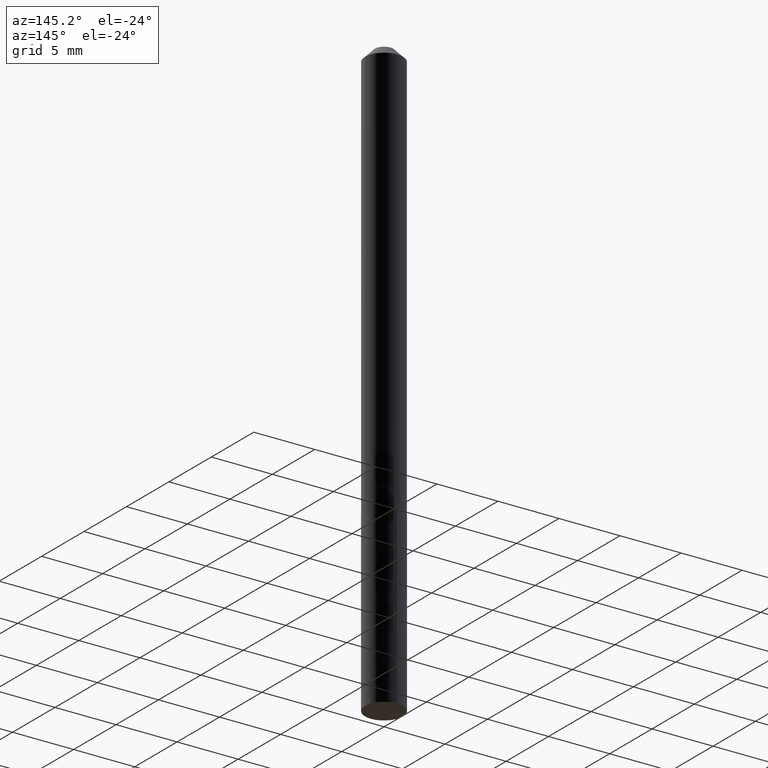
[diagram: clean part render]
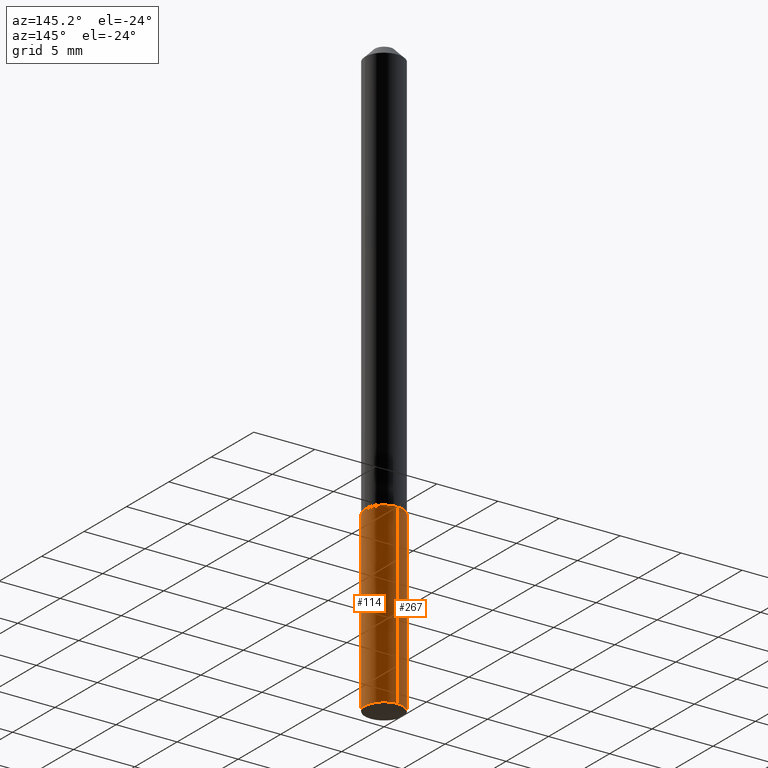
[diagram: same view with one multi-face feature highlighted, each face labeled with its STEP entity id]
A machine part, auxiliary view. The highlighted faces form ONE feature: a constant-radius fillet chain: 2 tangent blend faces with common blend radius 1.5494 mm. The faces share edges in the B-rep.
Their STEP definitions:
[1] entity #114 (Cylinder):
#6 = DIRECTION ( 'NONE',  ( -6.982962677686265922E-15, -1.000000000000000000, 4.478439333875842027E-15 ) ) ;
#10 = DIRECTION ( 'NONE',  ( -6.982962677686265922E-15, -1.000000000000000000, 4.478439333875842027E-15 ) ) ;
#14 = CARTESIAN_POINT ( 'NONE',  ( 4.334310688136938416E-16, 0.06099999999999530798, -1.342400000000000038 ) ) ;
#18 = AXIS2_PLACEMENT_3D ( 'NONE', #33, #62, #6 ) ;
#33 = CARTESIAN_POINT ( 'NONE',  ( 3.282797325422927074E-29, -4.686964549263038164E-15, -1.342399999999999816 ) ) ;
#38 = DIRECTION ( 'NONE',  ( -2.445600404365776077E-29, 3.491292882758366789E-15, 1.000000000000000000 ) ) ;
#51 = ORIENTED_EDGE ( 'NONE', *, *, #195, .F. ) ;
#54 = ORIENTED_EDGE ( 'NONE', *, *, #172, .T. ) ;
#62 = DIRECTION ( 'NONE',  ( -2.445600404365776077E-29, 3.491292882758366789E-15, 1.000000000000000000 ) ) ;
#86 = AXIS2_PLACEMENT_3D ( 'NONE', #257, #38, #95 ) ;
#95 = DIRECTION ( 'NONE',  ( -6.982962677686265922E-15, -1.000000000000000000, 4.478439333875842027E-15 ) ) ;
#98 = CIRCLE ( 'NONE', #86, 0.06099999999999999173 ) ;
#111 = EDGE_LOOP ( 'NONE', ( #54, #143, #51, #127 ) ) ;
#114 = ADVANCED_FACE ( 'NONE', ( #152 ), #342, .T. ) ;
#126 = VECTOR ( 'NONE', #133, 39.37007874015748143 ) ;
#127 = ORIENTED_EDGE ( 'NONE', *, *, #193, .F. ) ;
#133 = DIRECTION ( 'NONE',  ( -2.445600404365776077E-29, 3.491292882758367183E-15, 1.000000000000000000 ) ) ;
#134 = CARTESIAN_POINT ( 'NONE',  ( -4.259607233388293679E-16, -0.06100000000000468242, -1.342399999999999594 ) ) ;
#135 = LINE ( 'NONE', #14, #276 ) ;
#143 = ORIENTED_EDGE ( 'NONE', *, *, #144, .T. ) ;
#144 = EDGE_CURVE ( 'NONE', #212, #370, #135, .T. ) ;
#152 = FACE_OUTER_BOUND ( 'NONE', #111, .T. ) ;
#164 = AXIS2_PLACEMENT_3D ( 'NONE', #167, #229, #10 ) ;
#166 = CARTESIAN_POINT ( 'NONE',  ( -4.259607233388154150E-16, -0.06100000000000668082, -1.912755099261701064 ) ) ;
#167 = CARTESIAN_POINT ( 'NONE',  ( 4.677657986809425875E-29, -6.678241247960359106E-15, -1.912755099261701286 ) ) ;
#172 = EDGE_CURVE ( 'NONE', #187, #212, #197, .T. ) ;
#187 = VERTEX_POINT ( 'NONE', #166 ) ;
#193 = EDGE_CURVE ( 'NONE', #187, #273, #279, .T. ) ;
#195 = EDGE_CURVE ( 'NONE', #273, #370, #98, .T. ) ;
#197 = CIRCLE ( 'NONE', #164, 0.06099999999999999173 ) ;
#212 = VERTEX_POINT ( 'NONE', #353 ) ;
#229 = DIRECTION ( 'NONE',  ( -2.445600404365776077E-29, 3.491292882758366789E-15, 1.000000000000000000 ) ) ;
#257 = CARTESIAN_POINT ( 'NONE',  ( 3.282797325422927074E-29, -4.686964549263038164E-15, -1.342399999999999816 ) ) ;
#273 = VERTEX_POINT ( 'NONE', #314 ) ;
#276 = VECTOR ( 'NONE', #322, 39.37007874015748143 ) ;
#279 = LINE ( 'NONE', #134, #126 ) ;
#314 = CARTESIAN_POINT ( 'NONE',  ( -4.259607233388293679E-16, -0.06100000000000468242, -1.342399999999999594 ) ) ;
#322 = DIRECTION ( 'NONE',  ( -2.445600404365776077E-29, 3.491292882758367183E-15, 1.000000000000000000 ) ) ;
#342 = CYLINDRICAL_SURFACE ( 'NONE', #18, 0.06099999999999999173 ) ;
#353 = CARTESIAN_POINT ( 'NONE',  ( 4.334310688137078439E-16, 0.06099999999999331651, -1.912755099261701508 ) ) ;
#370 = VERTEX_POINT ( 'NONE', #382 ) ;
#382 = CARTESIAN_POINT ( 'NONE',  ( 4.334310688137078932E-16, 0.06099999999999530798, -1.342400000000000038 ) ) ;
[2] entity #267 (Cylinder):
#14 = CARTESIAN_POINT ( 'NONE',  ( 4.334310688136938416E-16, 0.06099999999999530798, -1.342400000000000038 ) ) ;
#22 = EDGE_CURVE ( 'NONE', #212, #187, #381, .T. ) ;
#27 = CARTESIAN_POINT ( 'NONE',  ( 3.282797325422927074E-29, -4.686964549263038164E-15, -1.342399999999999816 ) ) ;
#29 = DIRECTION ( 'NONE',  ( -6.982962677686265922E-15, -1.000000000000000000, 4.478439333875842027E-15 ) ) ;
#45 = EDGE_CURVE ( 'NONE', #370, #273, #136, .T. ) ;
#56 = DIRECTION ( 'NONE',  ( -2.445600404365776077E-29, 3.491292882758366789E-15, 1.000000000000000000 ) ) ;
#70 = DIRECTION ( 'NONE',  ( -2.445600404365776077E-29, 3.491292882758366789E-15, 1.000000000000000000 ) ) ;
#126 = VECTOR ( 'NONE', #133, 39.37007874015748143 ) ;
#133 = DIRECTION ( 'NONE',  ( -2.445600404365776077E-29, 3.491292882758367183E-15, 1.000000000000000000 ) ) ;
#134 = CARTESIAN_POINT ( 'NONE',  ( -4.259607233388293679E-16, -0.06100000000000468242, -1.342399999999999594 ) ) ;
#135 = LINE ( 'NONE', #14, #276 ) ;
#136 = CIRCLE ( 'NONE', #386, 0.06099999999999999173 ) ;
#144 = EDGE_CURVE ( 'NONE', #212, #370, #135, .T. ) ;
#145 = ORIENTED_EDGE ( 'NONE', *, *, #45, .F. ) ;
#149 = AXIS2_PLACEMENT_3D ( 'NONE', #333, #56, #177 ) ;
#150 = ORIENTED_EDGE ( 'NONE', *, *, #193, .T. ) ;
#166 = CARTESIAN_POINT ( 'NONE',  ( -4.259607233388154150E-16, -0.06100000000000668082, -1.912755099261701064 ) ) ;
#177 = DIRECTION ( 'NONE',  ( -6.982962677686265922E-15, -1.000000000000000000, 4.478439333875842027E-15 ) ) ;
#187 = VERTEX_POINT ( 'NONE', #166 ) ;
#192 = FACE_OUTER_BOUND ( 'NONE', #268, .T. ) ;
#193 = EDGE_CURVE ( 'NONE', #187, #273, #279, .T. ) ;
#203 = AXIS2_PLACEMENT_3D ( 'NONE', #281, #70, #284 ) ;
#212 = VERTEX_POINT ( 'NONE', #353 ) ;
#262 = ORIENTED_EDGE ( 'NONE', *, *, #144, .F. ) ;
#267 = ADVANCED_FACE ( 'NONE', ( #192 ), #316, .T. ) ;
#268 = EDGE_LOOP ( 'NONE', ( #262, #336, #150, #145 ) ) ;
#273 = VERTEX_POINT ( 'NONE', #314 ) ;
#276 = VECTOR ( 'NONE', #322, 39.37007874015748143 ) ;
#279 = LINE ( 'NONE', #134, #126 ) ;
#281 = CARTESIAN_POINT ( 'NONE',  ( 3.282797325422927074E-29, -4.686964549263038164E-15, -1.342399999999999816 ) ) ;
#284 = DIRECTION ( 'NONE',  ( -6.982962677686265922E-15, -1.000000000000000000, 4.478439333875842027E-15 ) ) ;
#314 = CARTESIAN_POINT ( 'NONE',  ( -4.259607233388293679E-16, -0.06100000000000468242, -1.342399999999999594 ) ) ;
#316 = CYLINDRICAL_SURFACE ( 'NONE', #203, 0.06099999999999999173 ) ;
#322 = DIRECTION ( 'NONE',  ( -2.445600404365776077E-29, 3.491292882758367183E-15, 1.000000000000000000 ) ) ;
#333 = CARTESIAN_POINT ( 'NONE',  ( 4.677657986809425875E-29, -6.678241247960359106E-15, -1.912755099261701286 ) ) ;
#336 = ORIENTED_EDGE ( 'NONE', *, *, #22, .T. ) ;
#353 = CARTESIAN_POINT ( 'NONE',  ( 4.334310688137078439E-16, 0.06099999999999331651, -1.912755099261701508 ) ) ;
#368 = DIRECTION ( 'NONE',  ( -2.445600404365776077E-29, 3.491292882758366789E-15, 1.000000000000000000 ) ) ;
#370 = VERTEX_POINT ( 'NONE', #382 ) ;
#381 = CIRCLE ( 'NONE', #149, 0.06099999999999999173 ) ;
#382 = CARTESIAN_POINT ( 'NONE',  ( 4.334310688137078932E-16, 0.06099999999999530798, -1.342400000000000038 ) ) ;
#386 = AXIS2_PLACEMENT_3D ( 'NONE', #27, #368, #29 ) ;